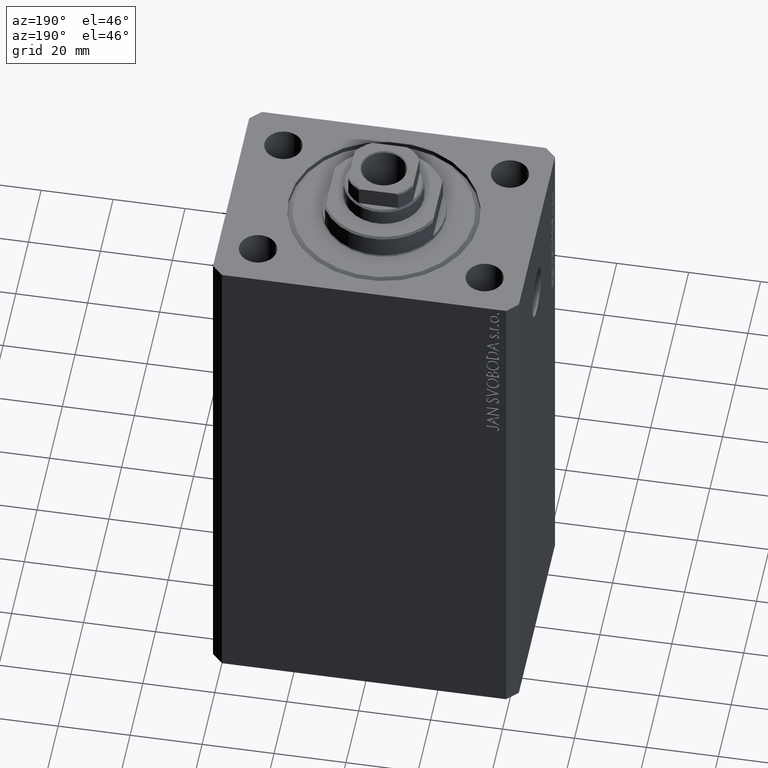
[diagram: clean part render]
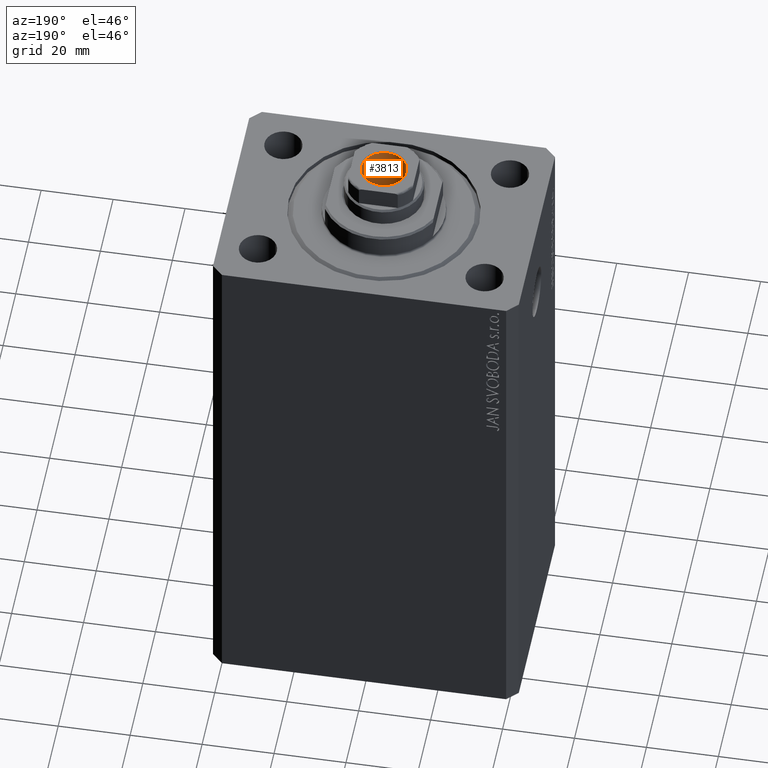
[diagram: same view with one face highlighted and labeled with its STEP entity id]
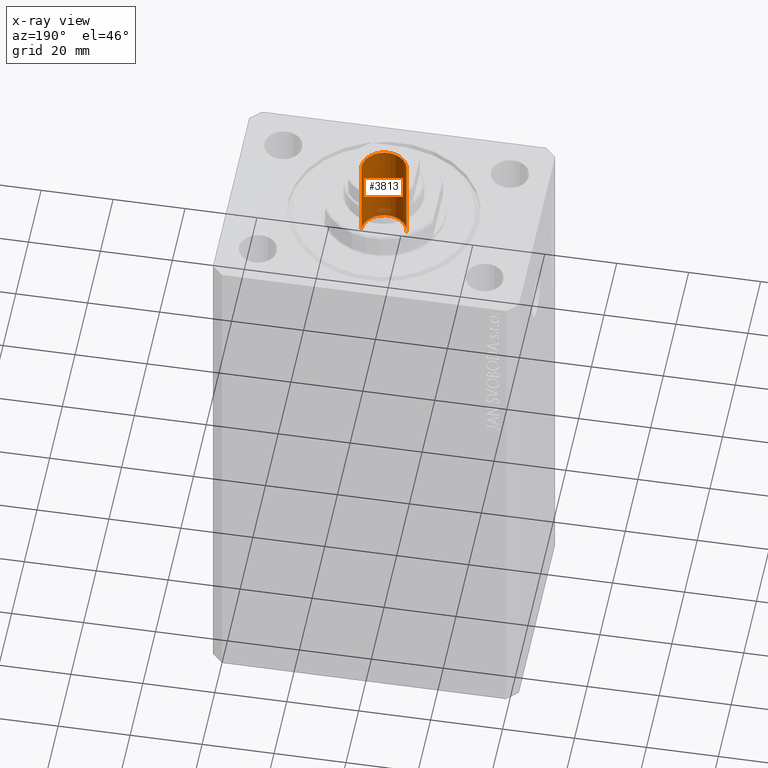
[diagram: x-ray of the same camera — body ghosted, the highlighted face saturated]
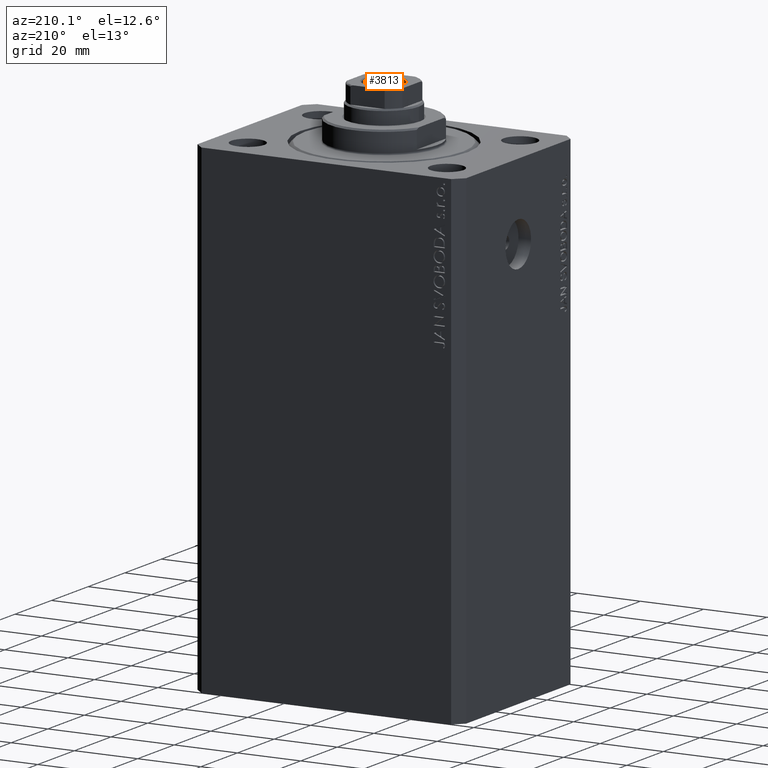
[diagram: same view with one face highlighted and labeled with its STEP entity id]
A machine part, auxiliary view. The second image highlights one B-rep face of the part: STEP entity #3813.
The next image is the same camera in x-ray: the body ghosted, the highlighted face saturated — about 5% of this face is hidden behind the body in this view.
A second angle (auxiliary view) of the same face is appended — the face is thin or edge-on in the first view.
In plain terms, the highlighted cylindrical surface (edge-blend (fillet) strip) has radius 6.25 mm, axis along (0, 0, 1).
Its self-contained STEP definition (entity closure, byte-faithful):
#311 = CARTESIAN_POINT ( 'NONE',  ( 0.000000000000000000, 0.000000000000000000, 133.6000000000000227 ) ) ;
#697 = VERTEX_POINT ( 'NONE', #11622 ) ;
#1737 = EDGE_CURVE ( 'NONE', #14664, #32754, #27465, .T. ) ;
#3437 = CIRCLE ( 'NONE', #44479, 6.249999999999995559 ) ;
#3813 = ADVANCED_FACE ( 'NONE', ( #31753 ), #10536, .F. ) ;
#4570 = DIRECTION ( 'NONE',  ( -0.000000000000000000, -0.000000000000000000, 1.000000000000000000 ) ) ;
#5715 = ORIENTED_EDGE ( 'NONE', *, *, #20671, .T. ) ;
#6652 = ORIENTED_EDGE ( 'NONE', *, *, #29735, .F. ) ;
#10299 = DIRECTION ( 'NONE',  ( -0.000000000000000000, -0.000000000000000000, 1.000000000000000000 ) ) ;
#10454 = DIRECTION ( 'NONE',  ( 1.000000000000000000, 0.000000000000000000, 0.000000000000000000 ) ) ;
#10536 = CYLINDRICAL_SURFACE ( 'NONE', #35580, 6.249999999999995559 ) ;
#11622 = CARTESIAN_POINT ( 'NONE',  ( 6.249999999999993783, 0.000000000000000000, 133.6000000000000227 ) ) ;
#14640 = VECTOR ( 'NONE', #10299, 1000.000000000000000 ) ;
#14664 = VERTEX_POINT ( 'NONE', #40640 ) ;
#16014 = DIRECTION ( 'NONE',  ( 1.000000000000000000, 0.000000000000000000, 0.000000000000000000 ) ) ;
#16641 = AXIS2_PLACEMENT_3D ( 'NONE', #311, #4570, #10454 ) ;
#16808 = EDGE_CURVE ( 'NONE', #697, #36519, #19138, .T. ) ;
#17325 = DIRECTION ( 'NONE',  ( -0.000000000000000000, -0.000000000000000000, 1.000000000000000000 ) ) ;
#18832 = ORIENTED_EDGE ( 'NONE', *, *, #16808, .F. ) ;
#19138 = LINE ( 'NONE', #19576, #41535 ) ;
#19504 = ORIENTED_EDGE ( 'NONE', *, *, #1737, .T. ) ;
#19576 = CARTESIAN_POINT ( 'NONE',  ( 6.249999999999995559, 0.000000000000000000, 158.6000000000000227 ) ) ;
#20284 = CARTESIAN_POINT ( 'NONE',  ( 6.249999999999995559, 0.000000000000000000, 158.3000000000000114 ) ) ;
#20671 = EDGE_CURVE ( 'NONE', #32754, #36519, #3437, .T. ) ;
#26166 = CARTESIAN_POINT ( 'NONE',  ( 0.000000000000000000, 0.000000000000000000, 158.3000000000000114 ) ) ;
#27465 = LINE ( 'NONE', #33997, #14640 ) ;
#29735 = EDGE_CURVE ( 'NONE', #14664, #697, #36068, .T. ) ;
#31753 = FACE_OUTER_BOUND ( 'NONE', #34134, .T. ) ;
#32754 = VERTEX_POINT ( 'NONE', #37744 ) ;
#33997 = CARTESIAN_POINT ( 'NONE',  ( -6.249999999999995559, 7.654042494670950704E-16, 158.6000000000000227 ) ) ;
#34134 = EDGE_LOOP ( 'NONE', ( #6652, #19504, #5715, #18832 ) ) ;
#34674 = CARTESIAN_POINT ( 'NONE',  ( 0.000000000000000000, 0.000000000000000000, 158.6000000000000227 ) ) ;
#35122 = DIRECTION ( 'NONE',  ( 1.000000000000000000, 0.000000000000000000, 0.000000000000000000 ) ) ;
#35580 = AXIS2_PLACEMENT_3D ( 'NONE', #34674, #17325, #35122 ) ;
#36068 = CIRCLE ( 'NONE', #16641, 6.249999999999993783 ) ;
#36519 = VERTEX_POINT ( 'NONE', #20284 ) ;
#37744 = CARTESIAN_POINT ( 'NONE',  ( -6.249999999999995559, 7.654042494670950704E-16, 158.3000000000000114 ) ) ;
#40129 = DIRECTION ( 'NONE',  ( 0.000000000000000000, 0.000000000000000000, 1.000000000000000000 ) ) ;
#40640 = CARTESIAN_POINT ( 'NONE',  ( -6.249999999999993783, 7.654042494670949718E-16, 133.6000000000000227 ) ) ;
#41535 = VECTOR ( 'NONE', #43449, 1000.000000000000000 ) ;
#43449 = DIRECTION ( 'NONE',  ( -0.000000000000000000, -0.000000000000000000, 1.000000000000000000 ) ) ;
#44479 = AXIS2_PLACEMENT_3D ( 'NONE', #26166, #40129, #16014 ) ;